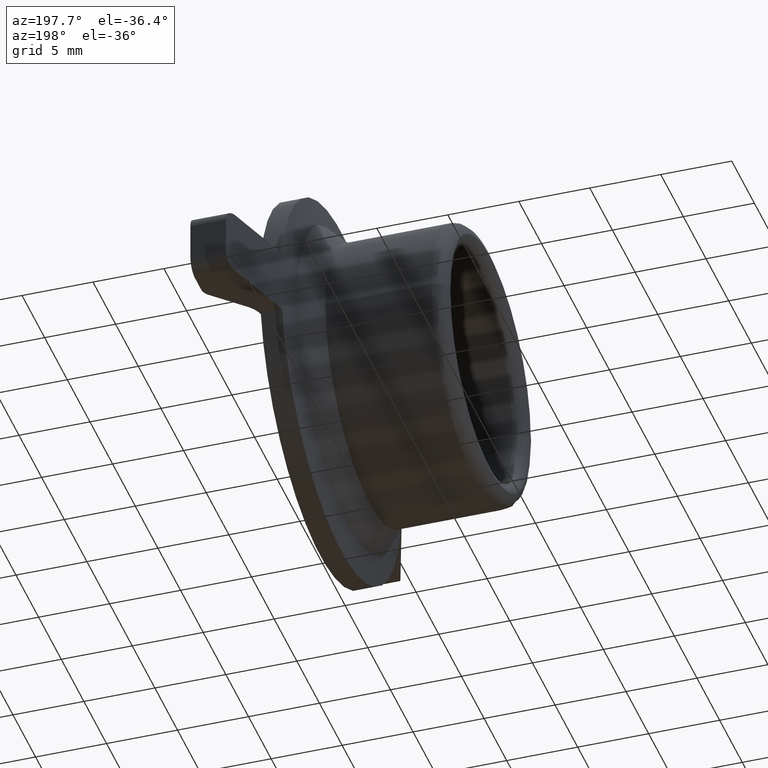
[diagram: clean part render]
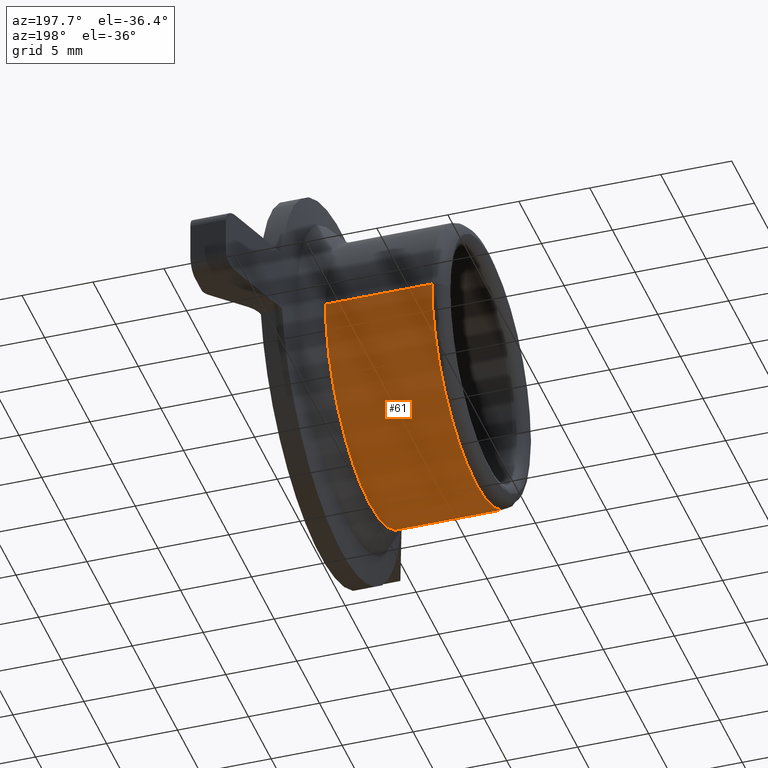
[diagram: same view with one face highlighted and labeled with its STEP entity id]
A machine part, auxiliary view. The second image highlights one B-rep face of the part: STEP entity #61.
In plain terms, the highlighted cylindrical surface (partial cylindrical patch) has radius 9.8 mm, axis along (-1, 0, 0).
Its self-contained STEP definition (entity closure, byte-faithful):
#61=ADVANCED_FACE('',(#116),#523,.T.);
#116=FACE_OUTER_BOUND('',#171,.F.);
#171=EDGE_LOOP('',(#227,#228,#229,#230));
#227=ORIENTED_EDGE('',*,*,#749,.F.);
#228=ORIENTED_EDGE('',*,*,#748,.T.);
#229=ORIENTED_EDGE('',*,*,#750,.T.);
#230=ORIENTED_EDGE('',*,*,#746,.F.);
#523=CYLINDRICAL_SURFACE('',#1108,9.8);
#563=LINE('',#1659,#643);
#564=LINE('',#1660,#644);
#643=VECTOR('',#1223,7.49999999999999);
#644=VECTOR('',#1224,7.49999999999999);
#746=EDGE_CURVE('',#963,#964,#872,.T.);
#748=EDGE_CURVE('',#961,#962,#874,.T.);
#749=EDGE_CURVE('',#961,#963,#563,.T.);
#750=EDGE_CURVE('',#962,#964,#564,.T.);
#872=CIRCLE('',#1059,9.8);
#874=CIRCLE('',#1061,9.8);
#961=VERTEX_POINT('',#1533);
#962=VERTEX_POINT('',#1534);
#963=VERTEX_POINT('',#1535);
#964=VERTEX_POINT('',#1536);
#1059=AXIS2_PLACEMENT_3D('',#1656,#1217,#1218);
#1061=AXIS2_PLACEMENT_3D('',#1658,#1221,#1222);
#1108=AXIS2_PLACEMENT_3D('',#1767,#1377,#1378);
#1217=DIRECTION('',(-1.,0.,0.));
#1218=DIRECTION('',(0.,1.,0.));
#1221=DIRECTION('',(-1.,0.,0.));
#1222=DIRECTION('',(0.,1.,0.));
#1223=DIRECTION('',(1.,0.,0.));
#1224=DIRECTION('',(1.,0.,0.));
#1377=DIRECTION('',(-1.,0.,0.));
#1378=DIRECTION('',(0.,1.,0.));
#1533=CARTESIAN_POINT('',(79.1649997146962,-40.199996427193,128.500000055078));
#1534=CARTESIAN_POINT('',(79.1649997146962,-59.799996427193,128.500000055078));
#1535=CARTESIAN_POINT('',(86.6649997146961,-40.199996427193,128.500000055078));
#1536=CARTESIAN_POINT('',(86.6649997146961,-59.799996427193,128.500000055078));
#1656=CARTESIAN_POINT('',(86.6649997146962,-49.999996427193,128.500000055078));
#1658=CARTESIAN_POINT('',(79.1649997146962,-49.999996427193,128.500000055078));
#1659=CARTESIAN_POINT('',(79.1649997146962,-40.199996427193,128.500000055078));
#1660=CARTESIAN_POINT('',(79.1649997146962,-59.799996427193,128.500000055078));
#1767=CARTESIAN_POINT('',(78.1649997146962,-49.999996427193,128.500000055078));